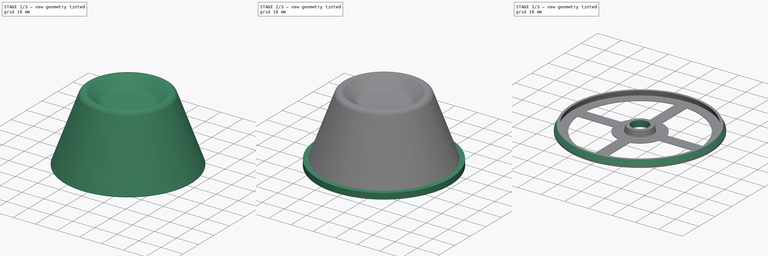
[diagram: build sequence overview — one tinted view per stage of 3, left to right]
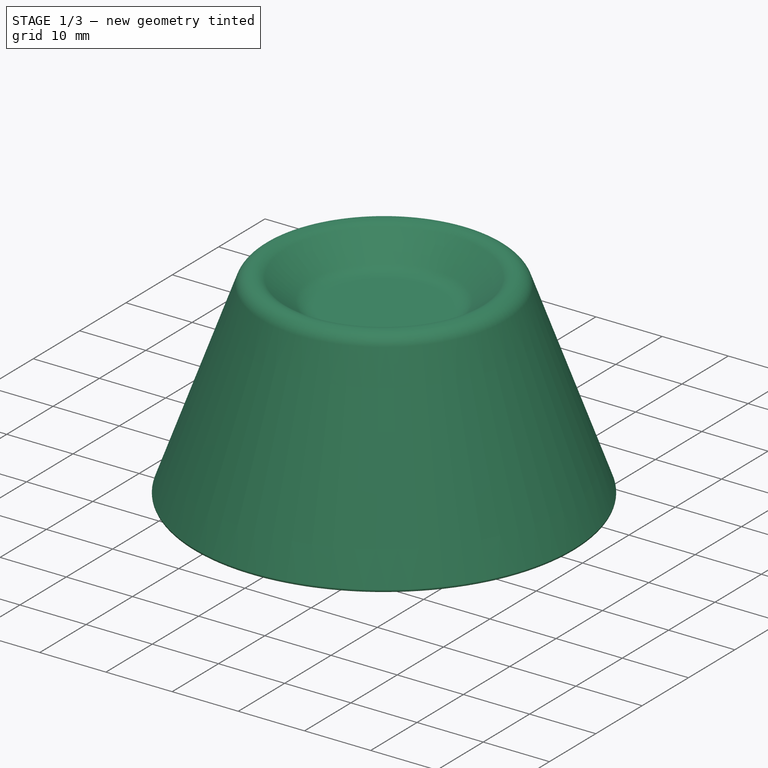
[diagram: stage 1 of 3 — iso view after this stage's code; geometry added in this stage tinted green]
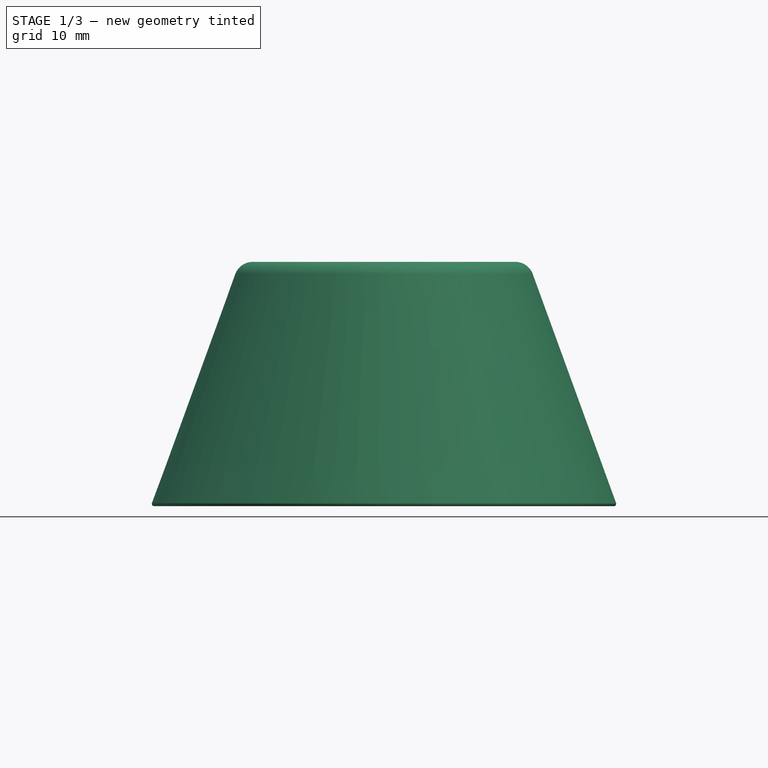
[diagram: stage 1 of 3 — front view after this stage's code; geometry added in this stage tinted green]
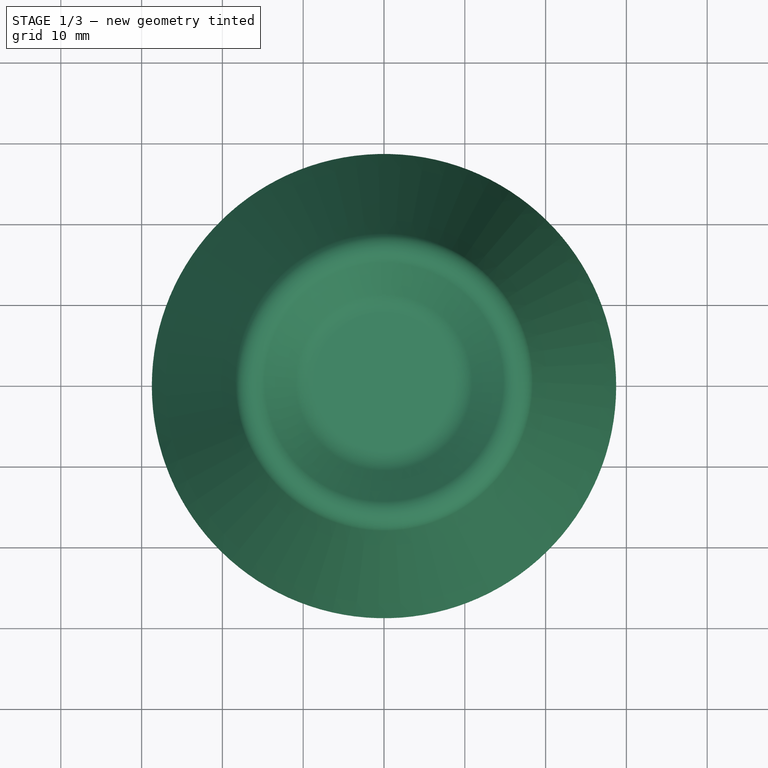
[diagram: stage 1 of 3 — top view after this stage's code; geometry added in this stage tinted green]
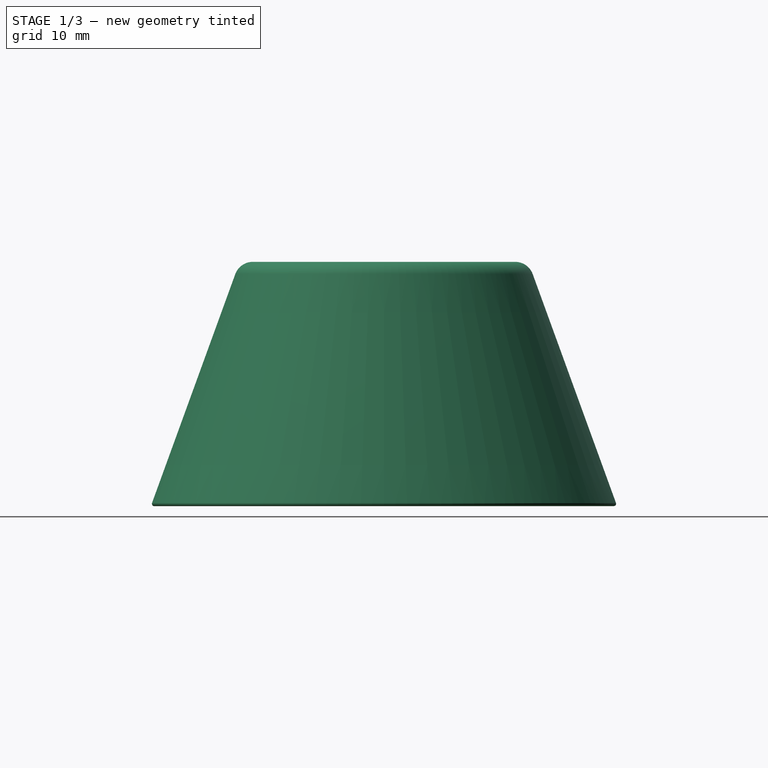
[diagram: stage 1 of 3 — right view after this stage's code; geometry added in this stage tinted green]
FCSTD DOCUMENT  (FreeCAD 0.19R)
Label: SoporteMicro
License: All rights reserved
LicenseURL: http://en.wikipedia.org/wiki/All_rights_reserved
objects: Sketcher::SketchObject×3, PartDesign::Body×3, PartDesign::Pad×2, App::Part×2, PartDesign::Revolution×1, PartDesign::FeatureBase×1, Part::Offset×1, PartDesign::Boolean×1, PartDesign::Chamfer×1, PartDesign::Pocket×1
note: 19 computed .brp shape members not serialized (recipe doc carries the construction recipe); baked Part::Feature solids carry a one-line shape summary decoded from their .brp

FEATURE [Sketcher::SketchObject] Sketch
  FullyConstrained = false
  MapMode = 5
  Placement = pos=(0,0,0) rot=(1,0,0;1.5708rad)
  Support = -> [XZ_Plane]
  sketch-geometry (12):
    g0: LineSegment StartX=1e-16 StartY=23.5 StartZ=0 EndX=0 EndY=25 EndZ=0
    g1: LineSegment StartX=0 StartY=25 StartZ=0 EndX=8.54412 EndY=25 EndZ=0
    g2: LineSegment StartX=11.1153 StartY=25.9358 StartZ=0 EndX=14.9625 EndY=29.164 EndZ=0
    g3: LineSegment StartX=18.1274 StartY=28.316 StartZ=0 EndX=28.4336 EndY=0 EndZ=0
    g4: LineSegment StartX=5.82188 StartY=0 StartZ=0 EndX=28.4336 EndY=0 EndZ=0
    g5: ArcOfCircle CenterX=8.54412 CenterY=29 CenterZ=0 NormalX=0 NormalY=0 NormalZ=1 AngleXU=0 Radius=4 StartAngle=4.71239 EndAngle=5.41052
    g6: GeomPoint X=10 Y=25 Z=0
    g7: ArcOfCircle CenterX=16.248 CenterY=27.6319 CenterZ=0 NormalX=0 NormalY=0 NormalZ=1 AngleXU=0 Radius=2 StartAngle=0.349066 EndAngle=2.26893
    g8: GeomPoint X=17.1505 Y=31 Z=0
    g9: LineSegment StartX=0 StartY=25 StartZ=0 EndX=14.0763 EndY=25 EndZ=0
    g10: ArcOfCircle CenterX=0 CenterY=21.5 CenterZ=0 NormalX=0 NormalY=0 NormalZ=1 AngleXU=0 Radius=2 StartAngle=0.174533 EndAngle=1.5708
    g11: LineSegment StartX=5.82188 StartY=0 StartZ=0 EndX=1.96962 EndY=21.8473 EndZ=0
  constraints (33):
    c: PointOnObject(g0,g-2)
    c: Coincident(g1,g0)
    c: Horizontal(g1)
    c: PointOnObject(g3,g-1)
    c: Coincident(g4,g3)
    c: Angle(g3,g4) = 1.22173
    c: DistanceY(g6,g8) = 6
    c: DistanceY(g-1,g6) = 25
    c: DistanceX(g0,g6) = 10
    c: PointOnObject(g6,g2)
    c: PointOnObject(g6,g1)
    c: Tangent(g2,g5) = -1.5708
    c: Tangent(g1,g5) = -1.5708
    c: Radius(g5) = 4
    c: PointOnObject(g8,g2)
    c: PointOnObject(g8,g3)
    c: Tangent(g2,g7) = 1.5708
    c: Tangent(g3,g7) = 1.5708
    c: Radius(g7) = 2
    c: Coincident(g9,g0)
    c: Horizontal(g9)
    c: Angle(g9,g2) = 0.698132
    c: DistanceX(g0,g-1) = 0
    c: DistanceY(g0,g0) = 1.5
    c: DistanceY(g4,g-1) = 0
    c: PointOnObject(g10,g-2)
    c: Radius(g10) = 2
    c: Coincident(g11,g4)
    c: Angle(g4,g11) = 1.74533
    c: Tangent(g10,g11) = -1.5708
    c: Coincident(g10,g0)
    c: DistanceX(g0,g7) = 16.248
    c: DistanceX(g-1,g3) = 28.4336
FEATURE [PartDesign::Revolution] Revolution
  Angle = 360
  Axis = (0,-2e-16,1)
  Base = (0,0,0)
  Placement = pos=(0,0,0) rot=(1,0,0;1.5708rad)
  Profile = -> Sketch
  ReferenceAxis = -> Sketch [V_Axis]
  Reversed = true
FEATURE [App::Part] Part001  label="Soporte"
  Group = -> [Body]
  Origin = -> Origin003
FEATURE [PartDesign::FeatureBase] Clone
  BaseFeature = -> Body
FEATURE [PartDesign::Body] Body002
  BaseFeature = -> Body
  Group = -> [Clone]
  Origin = -> Origin004
  Tip = -> Clone
FEATURE [Part::Offset] Offset
  Fill = false
  Intersection = false
  Join = 0
  Mode = 0
  SelfIntersection = false
  Source = -> Body002
  Value = 0.3
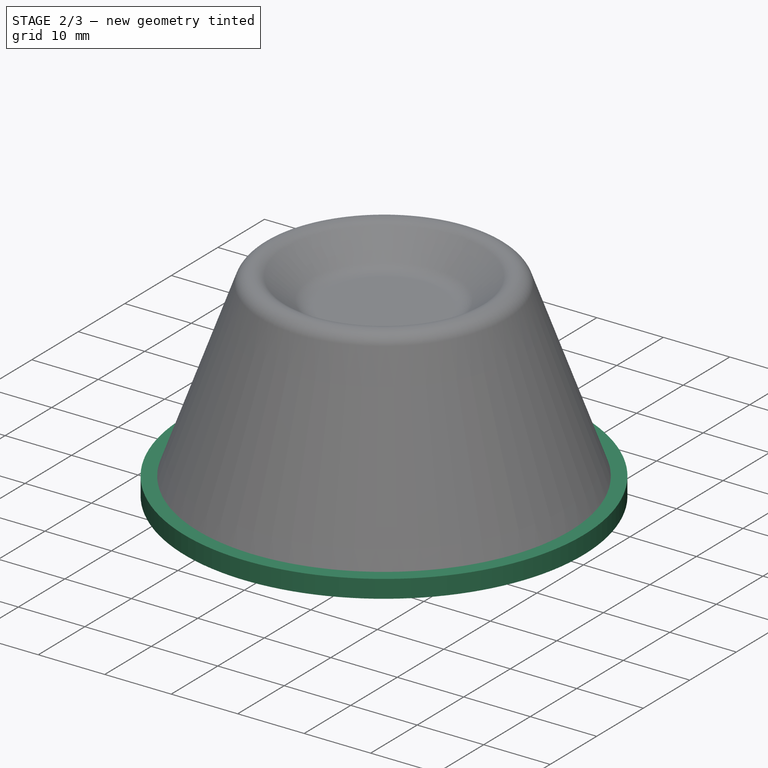
[diagram: stage 2 of 3 — iso view after this stage's code; geometry added in this stage tinted green]
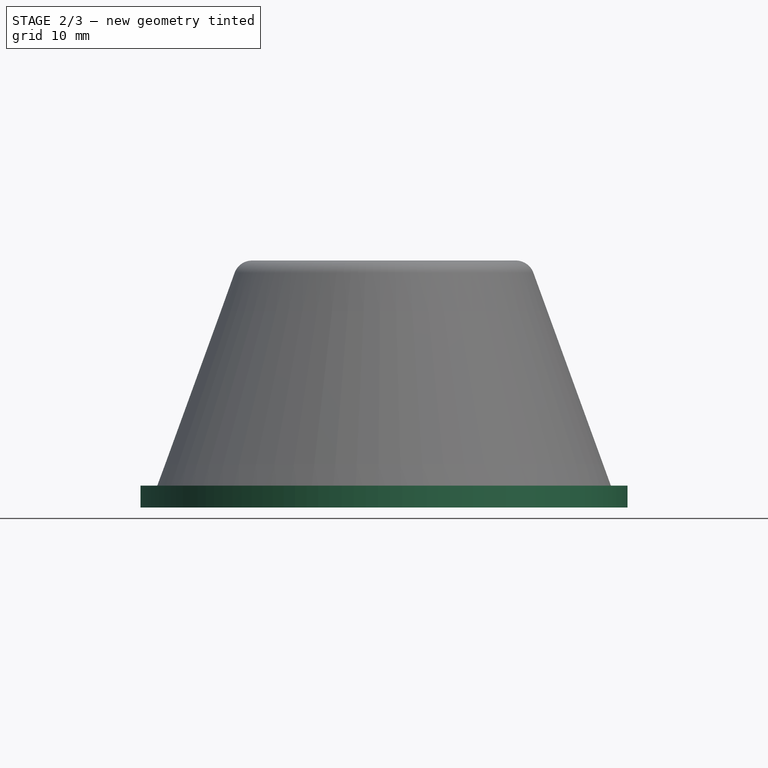
[diagram: stage 2 of 3 — front view after this stage's code; geometry added in this stage tinted green]
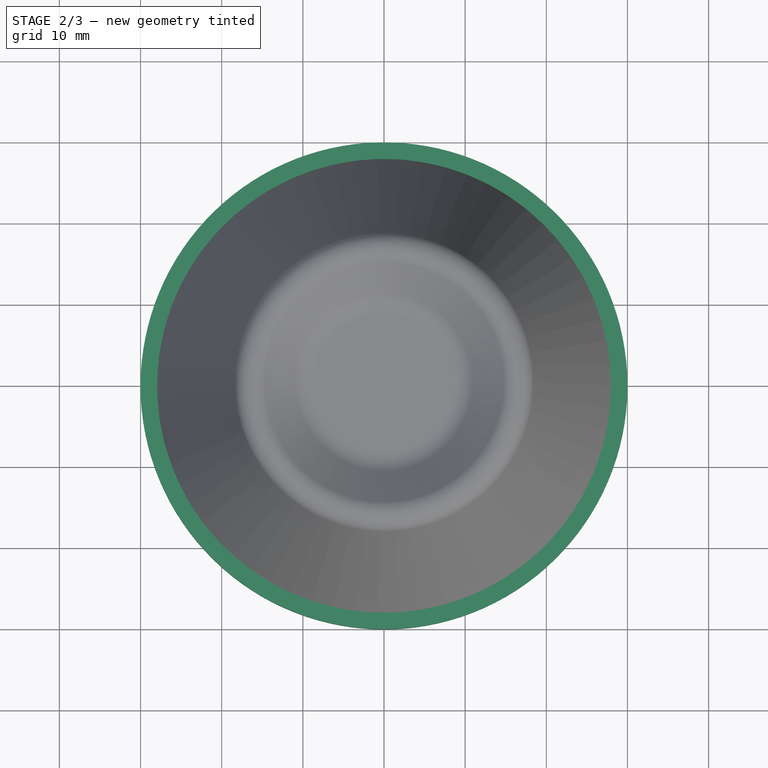
[diagram: stage 2 of 3 — top view after this stage's code; geometry added in this stage tinted green]
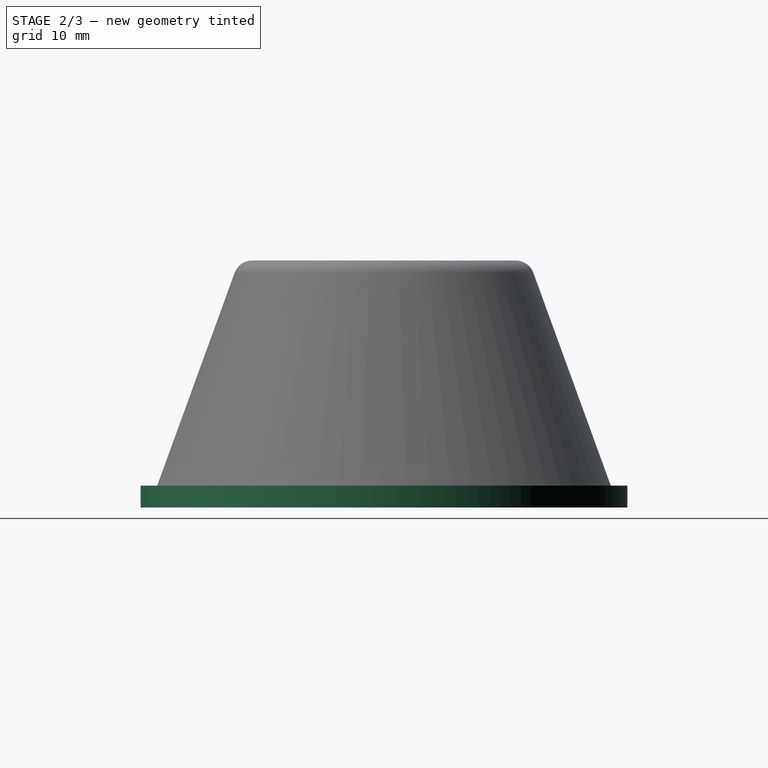
[diagram: stage 2 of 3 — right view after this stage's code; geometry added in this stage tinted green]
FEATURE [PartDesign::Body] Body
  Group = -> [Sketch,Revolution]
  Origin = -> Origin
  Tip = -> Revolution
FEATURE [Sketcher::SketchObject] Sketch001
  FullyConstrained = true
  MapMode = 5
  Support = -> [XY_Plane001]
  sketch-geometry (1):
    g0: Circle CenterX=0 CenterY=0 CenterZ=0 NormalX=0 NormalY=0 NormalZ=1 AngleXU=0 Radius=30
  constraints (2):
    c: Coincident(g0,g-1)
    c: Radius(g0) = 30
FEATURE [PartDesign::Pad] Pad
  Direction = (1,1,1)
  Length = 2.2
  Length2 = 100
  Profile = -> Sketch001
  Type = 0
FEATURE [PartDesign::Pad] Pad001
  BaseFeature = -> Pad
  Direction = (1,1,1)
  Length = 0.5
  Length2 = 100
  Profile = -> Sketch001
  Reversed = true
  Type = 0
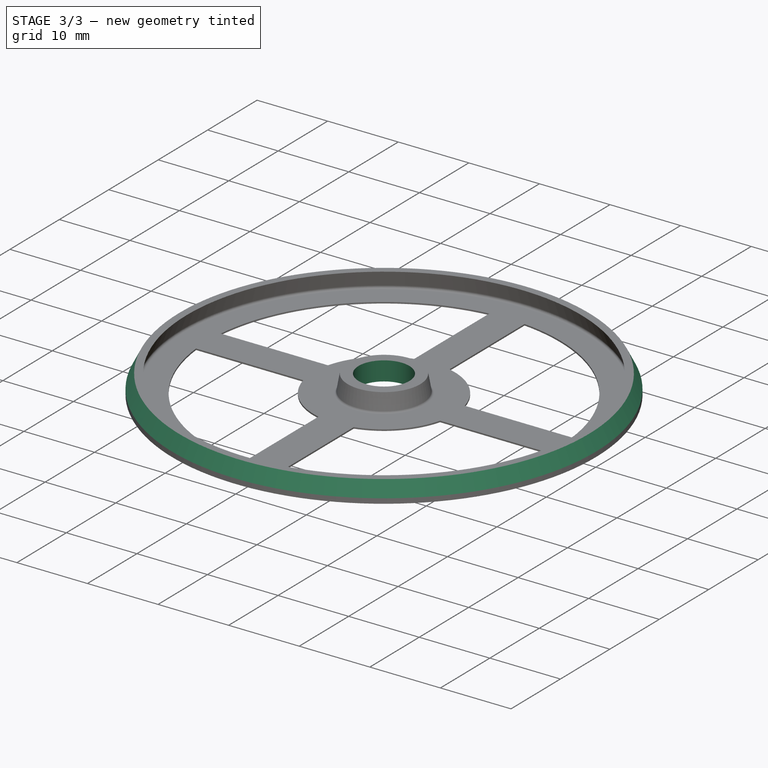
[diagram: stage 3 of 3 — iso view after this stage's code; geometry added in this stage tinted green]
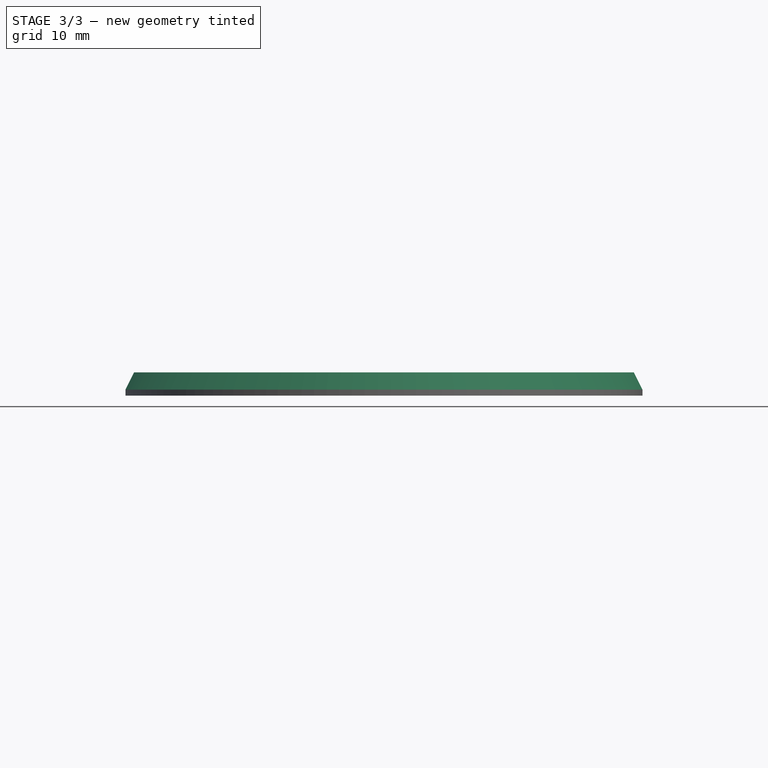
[diagram: stage 3 of 3 — front view after this stage's code; geometry added in this stage tinted green]
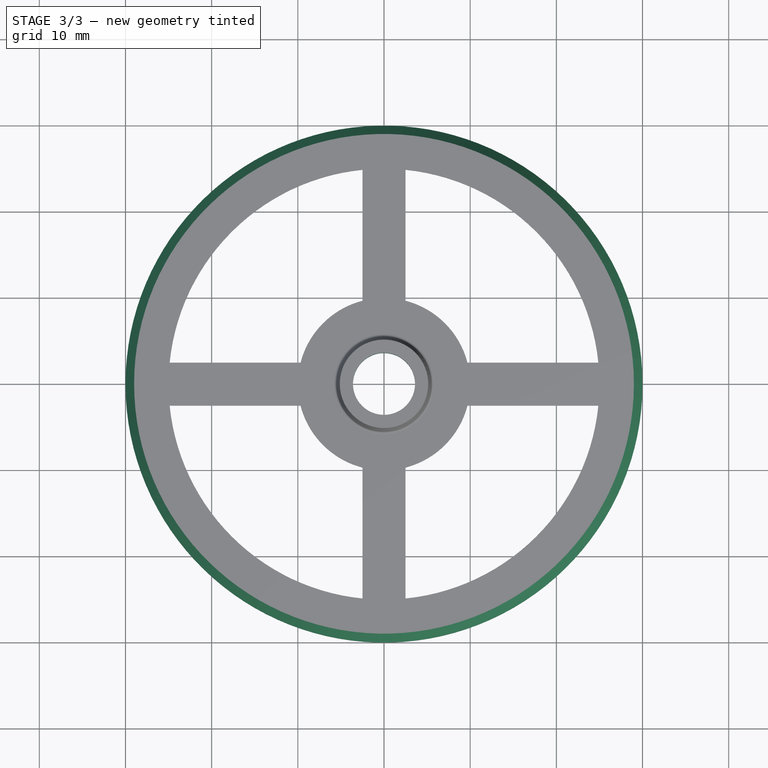
[diagram: stage 3 of 3 — top view after this stage's code; geometry added in this stage tinted green]
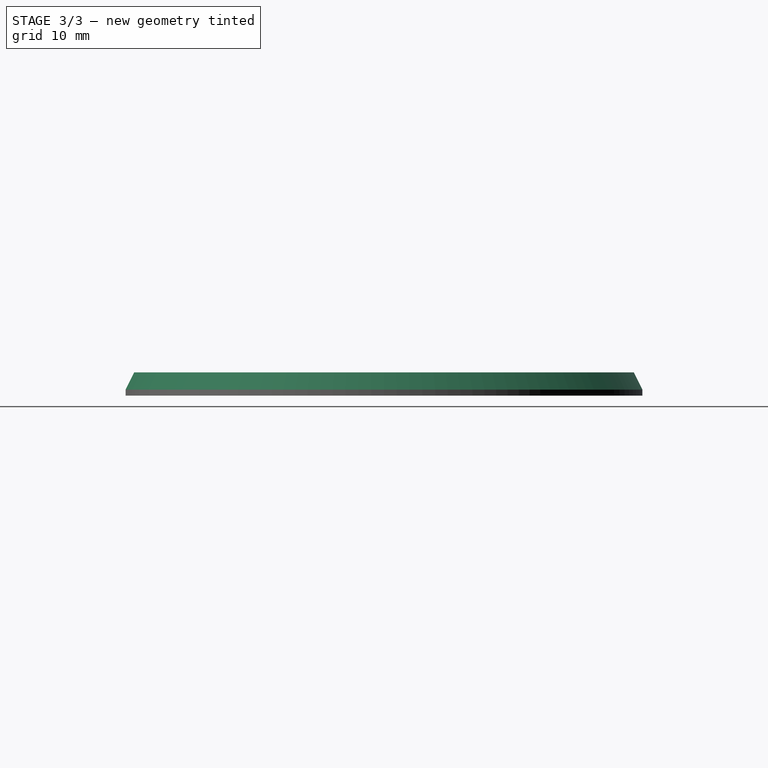
[diagram: stage 3 of 3 — right view after this stage's code; geometry added in this stage tinted green]
FEATURE [PartDesign::Boolean] Boolean
  BaseFeature = -> Pad001
  Group = -> [Offset]
  Type = 1
FEATURE [PartDesign::Chamfer] Chamfer
  Angle = 45
  Base = -> Boolean [Edge3]
  BaseFeature = -> Boolean
  ChamferType = 1
  FlipDirection = false
  Size = 2
  Size2 = 1
  SupportTransform = false
FEATURE [Sketcher::SketchObject] Sketch002
  FullyConstrained = true
  MapMode = 5
  Support = -> [XY_Plane001]
  sketch-geometry (17):
    g0: ArcOfCircle CenterX=0 CenterY=0 CenterZ=0 NormalX=0 NormalY=0 NormalZ=1 AngleXU=0 Radius=10 StartAngle=1.82348 EndAngle=2.88891
    g1: ArcOfCircle CenterX=0 CenterY=0 CenterZ=0 NormalX=0 NormalY=0 NormalZ=1 AngleXU=0 Radius=25 StartAngle=3.24176 EndAngle=4.61222
    g2: LineSegment StartX=9.68246 StartY=2.5 StartZ=0 EndX=24.8747 EndY=2.5 EndZ=0
    g3: LineSegment StartX=9.68246 StartY=-2.5 StartZ=0 EndX=24.8747 EndY=-2.5 EndZ=0
    g4: LineSegment StartX=-9.68246 StartY=2.5 StartZ=0 EndX=-24.8747 EndY=2.5 EndZ=0
    g5: LineSegment StartX=-9.68246 StartY=-2.5 StartZ=0 EndX=-24.8747 EndY=-2.5 EndZ=0
    g6: LineSegment StartX=-2.5 StartY=-9.68246 StartZ=0 EndX=-2.5 EndY=-24.8747 EndZ=0
    g7: LineSegment StartX=2.5 StartY=-9.68246 StartZ=0 EndX=2.5 EndY=-24.8747 EndZ=0
    g8: LineSegment StartX=-2.5 StartY=24.8747 StartZ=0 EndX=-2.5 EndY=9.68246 EndZ=0
    g9: LineSegment StartX=2.5 StartY=24.8747 StartZ=0 EndX=2.5 EndY=9.68246 EndZ=0
    g10: ArcOfCircle CenterX=0 CenterY=0 CenterZ=0 NormalX=0 NormalY=0 NormalZ=1 AngleXU=0 Radius=10 StartAngle=0.25268 EndAngle=1.31812
    g11: ArcOfCircle CenterX=0 CenterY=0 CenterZ=0 NormalX=0 NormalY=0 NormalZ=1 AngleXU=0 Radius=10 StartAngle=4.96507 EndAngle=6.03051
    g12: ArcOfCircle CenterX=0 CenterY=0 CenterZ=0 NormalX=0 NormalY=0 NormalZ=1 AngleXU=0 Radius=10 StartAngle=3.39427 EndAngle=4.45971
    g13: ArcOfCircle CenterX=0 CenterY=0 CenterZ=0 NormalX=0 NormalY=0 NormalZ=1 AngleXU=0 Radius=25 StartAngle=1.67096 EndAngle=3.04143
    g14: ArcOfCircle CenterX=0 CenterY=0 CenterZ=0 NormalX=0 NormalY=0 NormalZ=1 AngleXU=0 Radius=25 StartAngle=0.100167 EndAngle=1.47063
    g15: ArcOfCircle CenterX=0 CenterY=0 CenterZ=0 NormalX=0 NormalY=0 NormalZ=1 AngleXU=0 Radius=25 StartAngle=4.81256 EndAngle=6.18302
    g16: Circle CenterX=0 CenterY=0 CenterZ=0 NormalX=0 NormalY=0 NormalZ=1 AngleXU=0 Radius=3.6
  constraints (50):
    c: Coincident(g0,g-1)
    c: Coincident(g1,g0)
    c: Radius(g0) = 10
    c: Radius(g1) = 25
    c: Horizontal(g2)
    c: DistanceY(g0,g2) = 2.5
    c: Horizontal(g3)
    c: DistanceY(g3,g0) = 2.5
    c: Horizontal(g4)
    c: Horizontal(g5)
    c: DistanceY(g2,g4) = 0
    c: DistanceY(g5,g3) = 0
    c: Vertical(g6)
    c: Vertical(g7)
    c: DistanceX(g6,g7) = 5
    c: DistanceX(g6,g0) = 2.5
    c: Vertical(g8)
    c: Vertical(g9)
    c: DistanceX(g7,g9) = 0
    c: DistanceX(g6,g8) = 0
    c: Coincident(g0,g8)
    c: Coincident(g10,g9)
    c: Equal(g0,g10)
    c: Coincident(g11,g3)
    c: Coincident(g10,g2)
    c: Coincident(g0,g10)
    c: Equal(g0,g11)
    c: Coincident(g12,g6)
    c: Coincident(g11,g7)
    c: Coincident(g0,g11)
    c: Equal(g0,g12)
    c: Coincident(g0,g4)
    c: Coincident(g12,g5)
    c: Coincident(g0,g12)
    c: Coincident(g1,g5)
    c: Coincident(g13,g4)
    c: Equal(g1,g13)
    c: Coincident(g14,g9)
    c: Coincident(g13,g8)
    c: Coincident(g1,g13)
    c: Equal(g1,g14)
    c: Coincident(g15,g3)
    c: Coincident(g14,g2)
    c: Coincident(g1,g14)
    c: Equal(g1,g15)
    c: Coincident(g1,g6)
    c: Coincident(g15,g7)
    c: Coincident(g1,g15)
    c: Coincident(g16,g0)
    c: Radius(g16) = 3.6
FEATURE [PartDesign::Pocket] Pocket
  BaseFeature = -> Chamfer
  Length = 5
  Length2 = 100
  Midplane = true
  Profile = -> Sketch002
  Type = 1
FEATURE [PartDesign::Body] Body001
  Group = -> [Sketch001,Pad,Pad001,Boolean,Chamfer,Sketch002,Pocket]
  Origin = -> Origin001
  Tip = -> Pocket
FEATURE [App::Part] Part  label="Base"
  Group = -> [Body001]
  Origin = -> Origin002
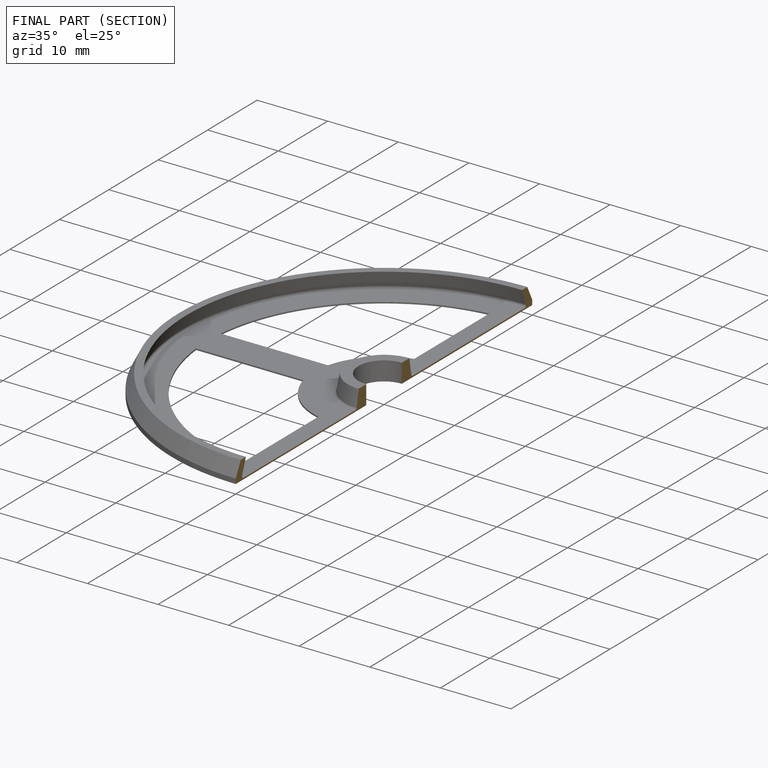
[diagram: finished part — half-section view (interior)]
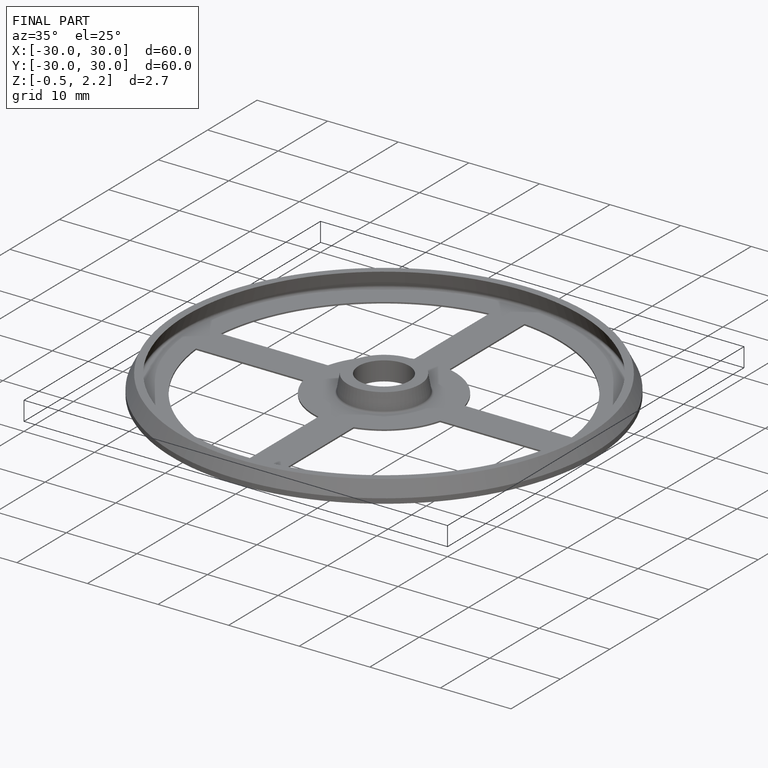
[diagram: finished part — iso view with bounding-box wireframe]
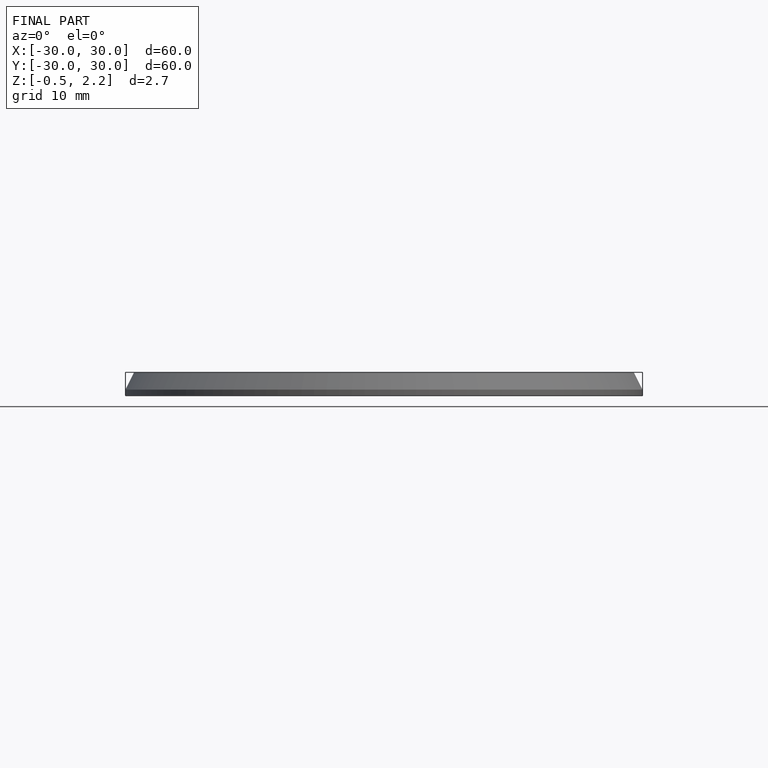
[diagram: finished part — front view with bounding-box wireframe]
